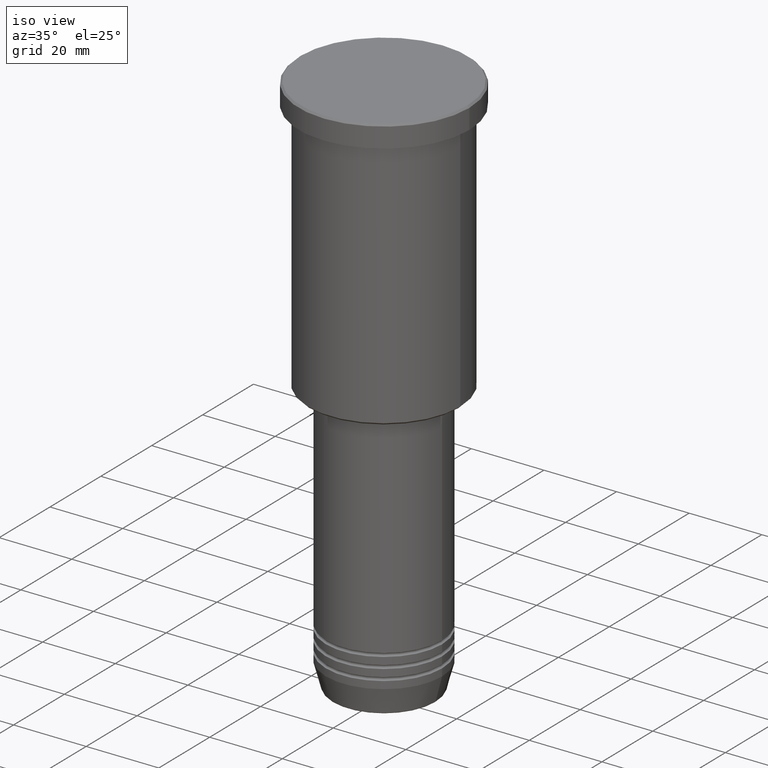
[diagram: clean part render]
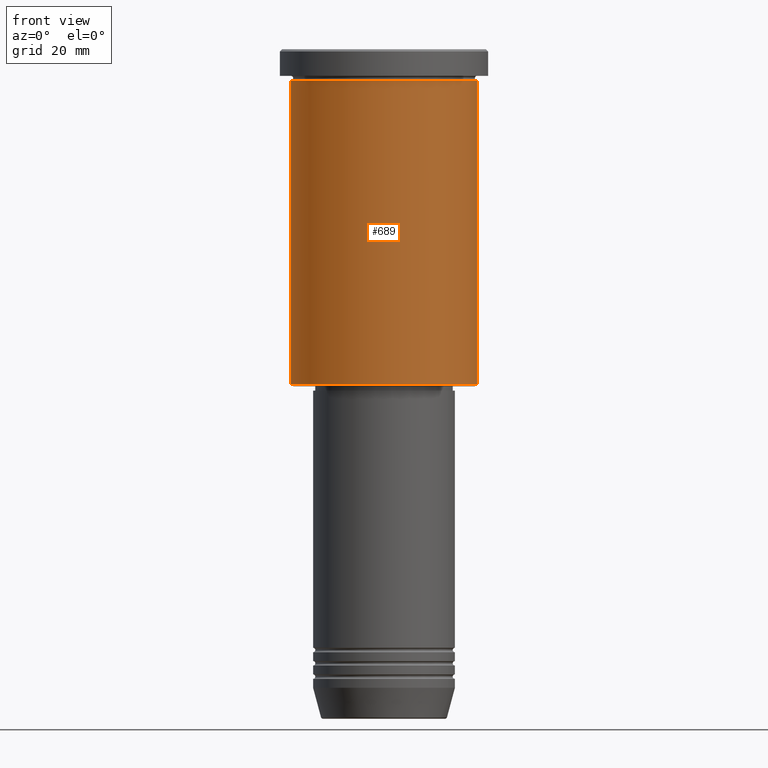
[diagram: tour spotlight — one face highlighted and labeled with its STEP entity id]
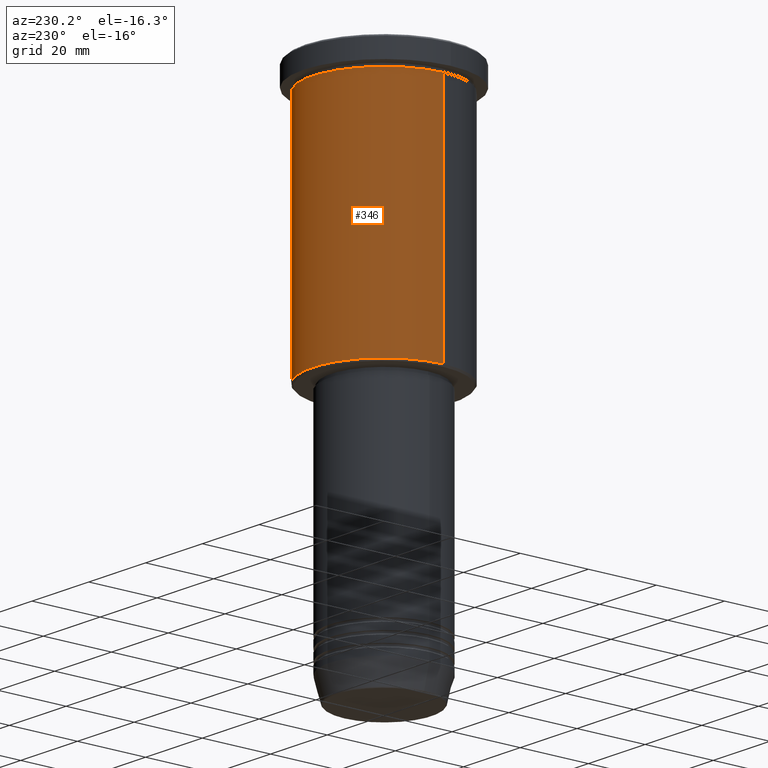
[diagram: tour spotlight — one face highlighted and labeled with its STEP entity id]
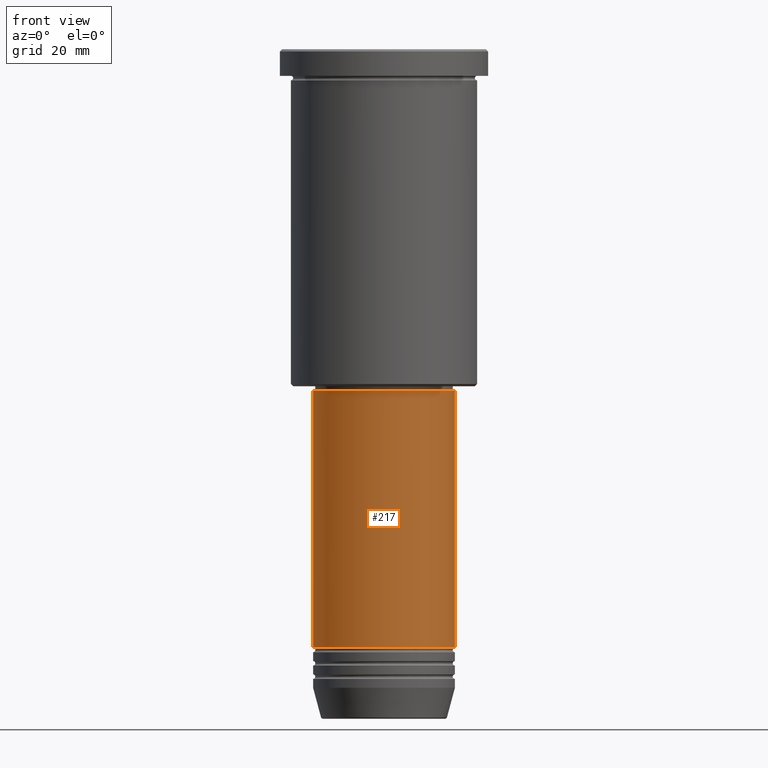
[diagram: tour spotlight — one face highlighted and labeled with its STEP entity id]
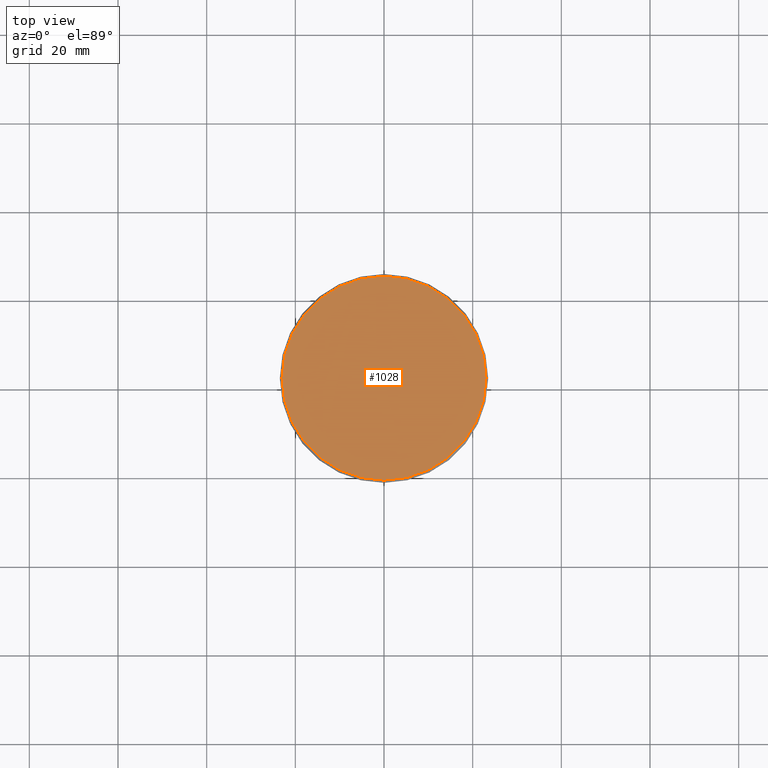
[diagram: tour spotlight — one face highlighted and labeled with its STEP entity id]
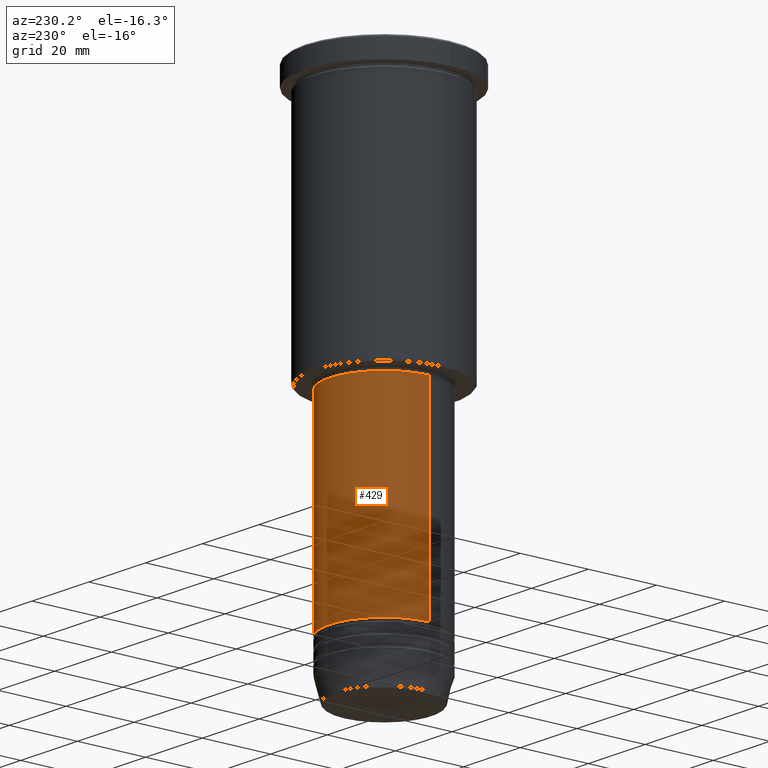
[diagram: tour spotlight — one face highlighted and labeled with its STEP entity id]
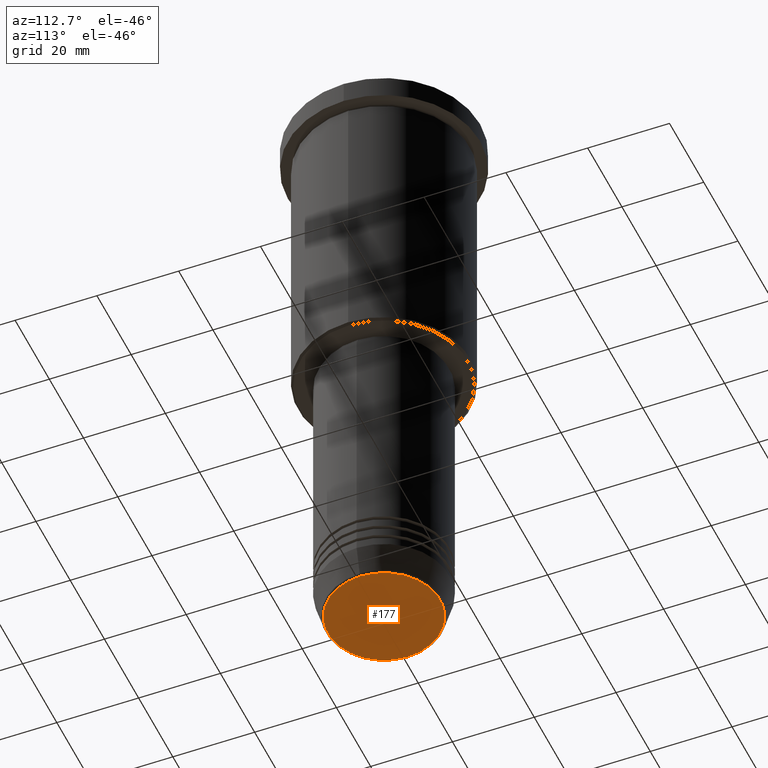
[diagram: tour spotlight — one face highlighted and labeled with its STEP entity id]
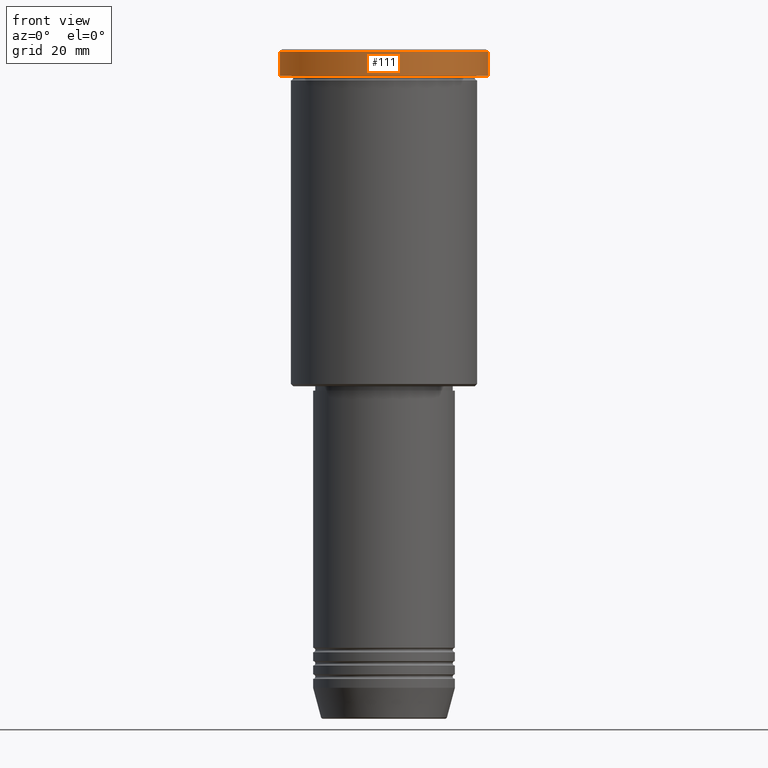
[diagram: tour spotlight — one face highlighted and labeled with its STEP entity id]
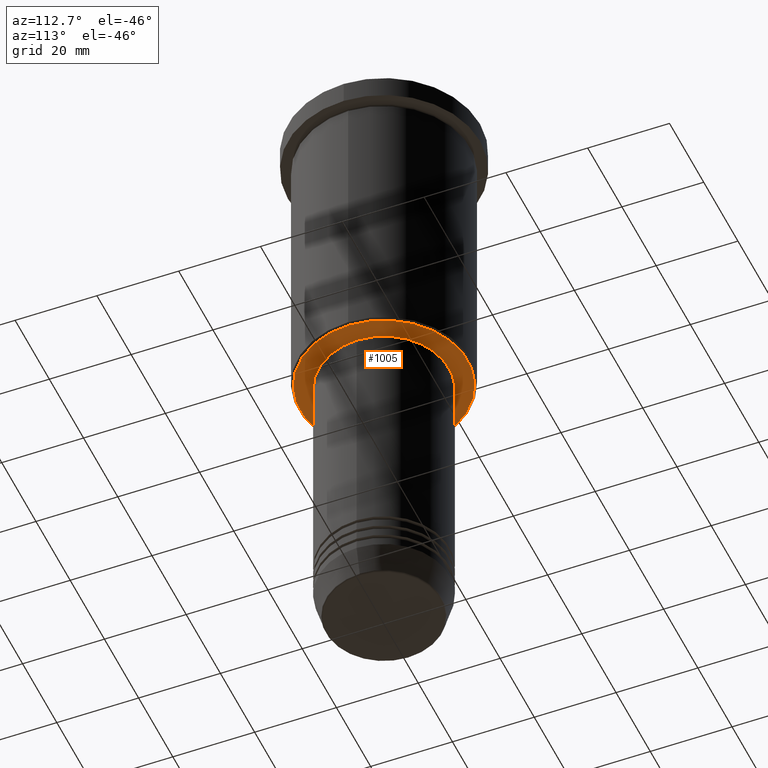
[diagram: tour spotlight — one face highlighted and labeled with its STEP entity id]
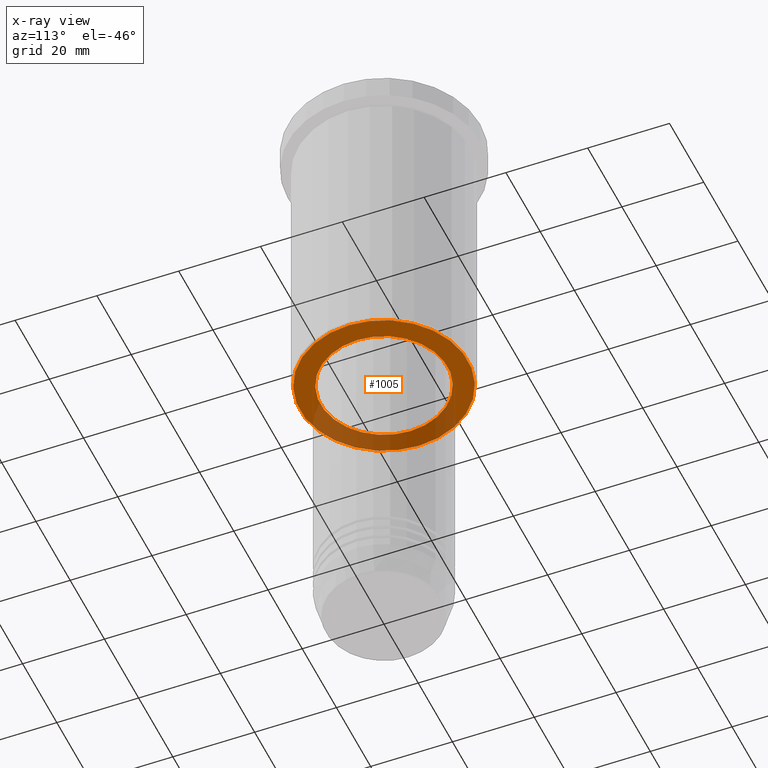
[diagram: x-ray of the same camera — body ghosted, this tour face saturated]
A machine part: a face-by-face anatomy tour. The part has 43 B-rep faces; the first image is the clean iso view, then the 8 largest visible faces are spotlighted one at a time (largest first), each with its STEP entity span.

Face 1 — front view, entity #689. In plain terms, the highlighted cylindrical surface (partial cylindrical patch) has radius 21 mm, axis along (-0, -0, 1).
Definition (entity closure, byte-faithful):
#3 = AXIS2_PLACEMENT_3D ( 'NONE', #139, #793, #599 ) ;
#29 = DIRECTION ( 'NONE',  ( -1.000000000000000000, 0.000000000000000000, 0.000000000000000000 ) ) ;
#139 = CARTESIAN_POINT ( 'NONE',  ( 0.000000000000000000, 0.000000000000000000, 0.000000000000000000 ) ) ;
#146 = FACE_OUTER_BOUND ( 'NONE', #410, .T. ) ;
#155 = AXIS2_PLACEMENT_3D ( 'NONE', #898, #538, #366 ) ;
#180 = LINE ( 'NONE', #651, #1159 ) ;
#182 = VERTEX_POINT ( 'NONE', #710 ) ;
#200 = ORIENTED_EDGE ( 'NONE', *, *, #778, .F. ) ;
#250 = CARTESIAN_POINT ( 'NONE',  ( -21.00000000000000000, 2.571758278209441661E-15, -75.50000000000000000 ) ) ;
#253 = EDGE_CURVE ( 'NONE', #182, #944, #180, .T. ) ;
#320 = VERTEX_POINT ( 'NONE', #250 ) ;
#362 = CARTESIAN_POINT ( 'NONE',  ( -21.00000000000000000, 2.571758278209441661E-15, -6.999999999999994671 ) ) ;
#366 = DIRECTION ( 'NONE',  ( 1.000000000000000000, 0.000000000000000000, 0.000000000000000000 ) ) ;
#367 = ORIENTED_EDGE ( 'NONE', *, *, #927, .T. ) ;
#398 = CARTESIAN_POINT ( 'NONE',  ( 0.000000000000000000, 0.000000000000000000, -75.50000000000000000 ) ) ;
#403 = CARTESIAN_POINT ( 'NONE',  ( 21.00000000000000000, 0.000000000000000000, -6.999999999999994671 ) ) ;
#410 = EDGE_LOOP ( 'NONE', ( #200, #367, #980, #819 ) ) ;
#538 = DIRECTION ( 'NONE',  ( -0.000000000000000000, -0.000000000000000000, 1.000000000000000000 ) ) ;
#554 = CARTESIAN_POINT ( 'NONE',  ( -21.00000000000000000, 2.571758278209441661E-15, 0.000000000000000000 ) ) ;
#592 = AXIS2_PLACEMENT_3D ( 'NONE', #398, #1121, #29 ) ;
#599 = DIRECTION ( 'NONE',  ( 1.000000000000000000, 0.000000000000000000, 0.000000000000000000 ) ) ;
#623 = LINE ( 'NONE', #554, #993 ) ;
#651 = CARTESIAN_POINT ( 'NONE',  ( 21.00000000000000000, 0.000000000000000000, 0.000000000000000000 ) ) ;
#689 = ADVANCED_FACE ( 'NONE', ( #146 ), #1042, .T. ) ;
#710 = CARTESIAN_POINT ( 'NONE',  ( 21.00000000000000000, 0.000000000000000000, -75.50000000000000000 ) ) ;
#749 = VERTEX_POINT ( 'NONE', #362 ) ;
#759 = EDGE_CURVE ( 'NONE', #749, #944, #916, .T. ) ;
#778 = EDGE_CURVE ( 'NONE', #320, #749, #623, .T. ) ;
#789 = CIRCLE ( 'NONE', #592, 21.00000000000000000 ) ;
#793 = DIRECTION ( 'NONE',  ( -0.000000000000000000, -0.000000000000000000, 1.000000000000000000 ) ) ;
#819 = ORIENTED_EDGE ( 'NONE', *, *, #759, .F. ) ;
#891 = DIRECTION ( 'NONE',  ( -0.000000000000000000, -0.000000000000000000, 1.000000000000000000 ) ) ;
#898 = CARTESIAN_POINT ( 'NONE',  ( 0.000000000000000000, 0.000000000000000000, -6.999999999999994671 ) ) ;
#916 = CIRCLE ( 'NONE', #155, 21.00000000000000000 ) ;
#927 = EDGE_CURVE ( 'NONE', #320, #182, #789, .T. ) ;
#944 = VERTEX_POINT ( 'NONE', #403 ) ;
#980 = ORIENTED_EDGE ( 'NONE', *, *, #253, .T. ) ;
#993 = VECTOR ( 'NONE', #891, 1000.000000000000000 ) ;
#1042 = CYLINDRICAL_SURFACE ( 'NONE', #3, 21.00000000000000000 ) ;
#1101 = DIRECTION ( 'NONE',  ( -0.000000000000000000, -0.000000000000000000, 1.000000000000000000 ) ) ;
#1121 = DIRECTION ( 'NONE',  ( -0.000000000000000000, -0.000000000000000000, 1.000000000000000000 ) ) ;
#1159 = VECTOR ( 'NONE', #1101, 1000.000000000000000 ) ;

Face 2 — auxiliary view, entity #346. In plain terms, the highlighted cylindrical surface (partial cylindrical patch) has radius 21 mm, axis along (-0, -0, 1).
Definition (entity closure, byte-faithful):
#4 = AXIS2_PLACEMENT_3D ( 'NONE', #381, #573, #285 ) ;
#71 = CYLINDRICAL_SURFACE ( 'NONE', #460, 21.00000000000000000 ) ;
#142 = AXIS2_PLACEMENT_3D ( 'NONE', #986, #627, #701 ) ;
#153 = FACE_OUTER_BOUND ( 'NONE', #931, .T. ) ;
#180 = LINE ( 'NONE', #651, #1159 ) ;
#182 = VERTEX_POINT ( 'NONE', #710 ) ;
#202 = ORIENTED_EDGE ( 'NONE', *, *, #778, .T. ) ;
#226 = ORIENTED_EDGE ( 'NONE', *, *, #253, .F. ) ;
#250 = CARTESIAN_POINT ( 'NONE',  ( -21.00000000000000000, 2.571758278209441661E-15, -75.50000000000000000 ) ) ;
#253 = EDGE_CURVE ( 'NONE', #182, #944, #180, .T. ) ;
#285 = DIRECTION ( 'NONE',  ( -1.000000000000000000, 0.000000000000000000, 0.000000000000000000 ) ) ;
#310 = EDGE_CURVE ( 'NONE', #944, #749, #999, .T. ) ;
#320 = VERTEX_POINT ( 'NONE', #250 ) ;
#346 = ADVANCED_FACE ( 'NONE', ( #153 ), #71, .T. ) ;
#349 = DIRECTION ( 'NONE',  ( 1.000000000000000000, 0.000000000000000000, 0.000000000000000000 ) ) ;
#362 = CARTESIAN_POINT ( 'NONE',  ( -21.00000000000000000, 2.571758278209441661E-15, -6.999999999999994671 ) ) ;
#381 = CARTESIAN_POINT ( 'NONE',  ( 0.000000000000000000, 0.000000000000000000, -75.50000000000000000 ) ) ;
#403 = CARTESIAN_POINT ( 'NONE',  ( 21.00000000000000000, 0.000000000000000000, -6.999999999999994671 ) ) ;
#460 = AXIS2_PLACEMENT_3D ( 'NONE', #1167, #709, #349 ) ;
#554 = CARTESIAN_POINT ( 'NONE',  ( -21.00000000000000000, 2.571758278209441661E-15, 0.000000000000000000 ) ) ;
#573 = DIRECTION ( 'NONE',  ( -0.000000000000000000, -0.000000000000000000, 1.000000000000000000 ) ) ;
#580 = ORIENTED_EDGE ( 'NONE', *, *, #310, .F. ) ;
#623 = LINE ( 'NONE', #554, #993 ) ;
#627 = DIRECTION ( 'NONE',  ( -0.000000000000000000, -0.000000000000000000, 1.000000000000000000 ) ) ;
#651 = CARTESIAN_POINT ( 'NONE',  ( 21.00000000000000000, 0.000000000000000000, 0.000000000000000000 ) ) ;
#701 = DIRECTION ( 'NONE',  ( 1.000000000000000000, 0.000000000000000000, 0.000000000000000000 ) ) ;
#709 = DIRECTION ( 'NONE',  ( -0.000000000000000000, -0.000000000000000000, 1.000000000000000000 ) ) ;
#710 = CARTESIAN_POINT ( 'NONE',  ( 21.00000000000000000, 0.000000000000000000, -75.50000000000000000 ) ) ;
#729 = CIRCLE ( 'NONE', #4, 21.00000000000000000 ) ;
#749 = VERTEX_POINT ( 'NONE', #362 ) ;
#778 = EDGE_CURVE ( 'NONE', #320, #749, #623, .T. ) ;
#783 = ORIENTED_EDGE ( 'NONE', *, *, #955, .T. ) ;
#891 = DIRECTION ( 'NONE',  ( -0.000000000000000000, -0.000000000000000000, 1.000000000000000000 ) ) ;
#931 = EDGE_LOOP ( 'NONE', ( #783, #202, #580, #226 ) ) ;
#944 = VERTEX_POINT ( 'NONE', #403 ) ;
#955 = EDGE_CURVE ( 'NONE', #182, #320, #729, .T. ) ;
#986 = CARTESIAN_POINT ( 'NONE',  ( 0.000000000000000000, 0.000000000000000000, -6.999999999999994671 ) ) ;
#993 = VECTOR ( 'NONE', #891, 1000.000000000000000 ) ;
#999 = CIRCLE ( 'NONE', #142, 21.00000000000000000 ) ;
#1101 = DIRECTION ( 'NONE',  ( -0.000000000000000000, -0.000000000000000000, 1.000000000000000000 ) ) ;
#1159 = VECTOR ( 'NONE', #1101, 1000.000000000000000 ) ;
#1167 = CARTESIAN_POINT ( 'NONE',  ( 0.000000000000000000, 0.000000000000000000, 0.000000000000000000 ) ) ;

Face 3 — front view, entity #217. In plain terms, the highlighted cylindrical surface (partial cylindrical patch) has radius 16 mm, axis along (-0, -0, 1).
Definition (entity closure, byte-faithful):
#44 = DIRECTION ( 'NONE',  ( -0.000000000000000000, -0.000000000000000000, 1.000000000000000000 ) ) ;
#45 = CIRCLE ( 'NONE', #868, 16.00000000000000000 ) ;
#84 = CARTESIAN_POINT ( 'NONE',  ( 16.00000000000000000, 0.000000000000000000, -76.99999999999998579 ) ) ;
#103 = CARTESIAN_POINT ( 'NONE',  ( 16.00000000000000000, 0.000000000000000000, -134.9999999999999432 ) ) ;
#151 = DIRECTION ( 'NONE',  ( -0.000000000000000000, -0.000000000000000000, 1.000000000000000000 ) ) ;
#217 = ADVANCED_FACE ( 'NONE', ( #1149 ), #402, .T. ) ;
#221 = CARTESIAN_POINT ( 'NONE',  ( 0.000000000000000000, 0.000000000000000000, -76.99999999999998579 ) ) ;
#245 = EDGE_CURVE ( 'NONE', #878, #748, #45, .T. ) ;
#277 = VERTEX_POINT ( 'NONE', #103 ) ;
#293 = VECTOR ( 'NONE', #151, 1000.000000000000000 ) ;
#354 = VECTOR ( 'NONE', #741, 1000.000000000000000 ) ;
#395 = AXIS2_PLACEMENT_3D ( 'NONE', #785, #1053, #424 ) ;
#402 = CYLINDRICAL_SURFACE ( 'NONE', #1139, 16.00000000000000000 ) ;
#411 = CARTESIAN_POINT ( 'NONE',  ( -16.00000000000000000, 1.959434878635765131E-15, 0.000000000000000000 ) ) ;
#412 = ORIENTED_EDGE ( 'NONE', *, *, #869, .T. ) ;
#420 = CARTESIAN_POINT ( 'NONE',  ( -16.00000000000000000, 1.959434878635765131E-15, -134.9999999999999432 ) ) ;
#424 = DIRECTION ( 'NONE',  ( 1.000000000000000000, 0.000000000000000000, 0.000000000000000000 ) ) ;
#485 = CARTESIAN_POINT ( 'NONE',  ( 16.00000000000000000, 0.000000000000000000, 0.000000000000000000 ) ) ;
#514 = CARTESIAN_POINT ( 'NONE',  ( 0.000000000000000000, 0.000000000000000000, 0.000000000000000000 ) ) ;
#657 = EDGE_CURVE ( 'NONE', #683, #878, #762, .T. ) ;
#672 = EDGE_LOOP ( 'NONE', ( #1043, #912, #412, #687 ) ) ;
#683 = VERTEX_POINT ( 'NONE', #420 ) ;
#687 = ORIENTED_EDGE ( 'NONE', *, *, #245, .F. ) ;
#741 = DIRECTION ( 'NONE',  ( -0.000000000000000000, -0.000000000000000000, 1.000000000000000000 ) ) ;
#748 = VERTEX_POINT ( 'NONE', #84 ) ;
#762 = LINE ( 'NONE', #411, #293 ) ;
#785 = CARTESIAN_POINT ( 'NONE',  ( 0.000000000000000000, 0.000000000000000000, -134.9999999999999432 ) ) ;
#830 = LINE ( 'NONE', #485, #354 ) ;
#835 = CARTESIAN_POINT ( 'NONE',  ( -16.00000000000000000, 1.959434878635765131E-15, -76.99999999999998579 ) ) ;
#837 = DIRECTION ( 'NONE',  ( -0.000000000000000000, -0.000000000000000000, 1.000000000000000000 ) ) ;
#868 = AXIS2_PLACEMENT_3D ( 'NONE', #221, #837, #1049 ) ;
#869 = EDGE_CURVE ( 'NONE', #277, #748, #830, .T. ) ;
#878 = VERTEX_POINT ( 'NONE', #835 ) ;
#912 = ORIENTED_EDGE ( 'NONE', *, *, #1082, .T. ) ;
#1043 = ORIENTED_EDGE ( 'NONE', *, *, #657, .F. ) ;
#1049 = DIRECTION ( 'NONE',  ( 1.000000000000000000, 0.000000000000000000, 0.000000000000000000 ) ) ;
#1053 = DIRECTION ( 'NONE',  ( -0.000000000000000000, -0.000000000000000000, 1.000000000000000000 ) ) ;
#1082 = EDGE_CURVE ( 'NONE', #683, #277, #1115, .T. ) ;
#1115 = CIRCLE ( 'NONE', #395, 16.00000000000000000 ) ;
#1139 = AXIS2_PLACEMENT_3D ( 'NONE', #514, #44, #1145 ) ;
#1145 = DIRECTION ( 'NONE',  ( 1.000000000000000000, 0.000000000000000000, 0.000000000000000000 ) ) ;
#1149 = FACE_OUTER_BOUND ( 'NONE', #672, .T. ) ;

Face 4 — top view, entity #1028. In plain terms, the highlighted planar face has unit normal (0, -0, 1).
Definition (entity closure, byte-faithful):
#40 = DIRECTION ( 'NONE',  ( 0.000000000000000000, -0.000000000000000000, 1.000000000000000000 ) ) ;
#69 = VERTEX_POINT ( 'NONE', #390 ) ;
#147 = EDGE_LOOP ( 'NONE', ( #342, #198 ) ) ;
#195 = CIRCLE ( 'NONE', #978, 22.99999999999999645 ) ;
#198 = ORIENTED_EDGE ( 'NONE', *, *, #237, .T. ) ;
#237 = EDGE_CURVE ( 'NONE', #812, #69, #195, .T. ) ;
#240 = CARTESIAN_POINT ( 'NONE',  ( 0.000000000000000000, 0.000000000000000000, 0.000000000000000000 ) ) ;
#309 = DIRECTION ( 'NONE',  ( -0.000000000000000000, -0.000000000000000000, 1.000000000000000000 ) ) ;
#318 = CARTESIAN_POINT ( 'NONE',  ( 0.000000000000000000, 0.000000000000000000, 0.000000000000000000 ) ) ;
#342 = ORIENTED_EDGE ( 'NONE', *, *, #688, .T. ) ;
#390 = CARTESIAN_POINT ( 'NONE',  ( -22.99999999999999645, 0.000000000000000000, 0.000000000000000000 ) ) ;
#457 = AXIS2_PLACEMENT_3D ( 'NONE', #318, #951, #678 ) ;
#591 = CIRCLE ( 'NONE', #457, 22.99999999999999645 ) ;
#669 = DIRECTION ( 'NONE',  ( 1.000000000000000000, 0.000000000000000000, 0.000000000000000000 ) ) ;
#675 = AXIS2_PLACEMENT_3D ( 'NONE', #240, #40, #945 ) ;
#678 = DIRECTION ( 'NONE',  ( 1.000000000000000000, 0.000000000000000000, 0.000000000000000000 ) ) ;
#688 = EDGE_CURVE ( 'NONE', #69, #812, #591, .T. ) ;
#692 = FACE_OUTER_BOUND ( 'NONE', #147, .T. ) ;
#812 = VERTEX_POINT ( 'NONE', #1073 ) ;
#940 = PLANE ( 'NONE',  #675 ) ;
#945 = DIRECTION ( 'NONE',  ( 1.000000000000000000, 0.000000000000000000, 0.000000000000000000 ) ) ;
#951 = DIRECTION ( 'NONE',  ( -0.000000000000000000, -0.000000000000000000, 1.000000000000000000 ) ) ;
#978 = AXIS2_PLACEMENT_3D ( 'NONE', #1124, #309, #669 ) ;
#1028 = ADVANCED_FACE ( 'NONE', ( #692 ), #940, .T. ) ;
#1073 = CARTESIAN_POINT ( 'NONE',  ( 22.99999999999999645, 2.847303808017596139E-15, 0.000000000000000000 ) ) ;
#1124 = CARTESIAN_POINT ( 'NONE',  ( 0.000000000000000000, 0.000000000000000000, 0.000000000000000000 ) ) ;

Face 5 — auxiliary view, entity #429. In plain terms, the highlighted cylindrical surface (partial cylindrical patch) has radius 16 mm, axis along (-0, -0, 1).
Definition (entity closure, byte-faithful):
#21 = DIRECTION ( 'NONE',  ( -0.000000000000000000, -0.000000000000000000, 1.000000000000000000 ) ) ;
#76 = CIRCLE ( 'NONE', #454, 16.00000000000000000 ) ;
#81 = DIRECTION ( 'NONE',  ( 1.000000000000000000, 0.000000000000000000, 0.000000000000000000 ) ) ;
#84 = CARTESIAN_POINT ( 'NONE',  ( 16.00000000000000000, 0.000000000000000000, -76.99999999999998579 ) ) ;
#103 = CARTESIAN_POINT ( 'NONE',  ( 16.00000000000000000, 0.000000000000000000, -134.9999999999999432 ) ) ;
#114 = ORIENTED_EDGE ( 'NONE', *, *, #869, .F. ) ;
#122 = CARTESIAN_POINT ( 'NONE',  ( 0.000000000000000000, 0.000000000000000000, 0.000000000000000000 ) ) ;
#151 = DIRECTION ( 'NONE',  ( -0.000000000000000000, -0.000000000000000000, 1.000000000000000000 ) ) ;
#231 = ORIENTED_EDGE ( 'NONE', *, *, #1177, .T. ) ;
#277 = VERTEX_POINT ( 'NONE', #103 ) ;
#293 = VECTOR ( 'NONE', #151, 1000.000000000000000 ) ;
#354 = VECTOR ( 'NONE', #741, 1000.000000000000000 ) ;
#392 = DIRECTION ( 'NONE',  ( 1.000000000000000000, 0.000000000000000000, 0.000000000000000000 ) ) ;
#411 = CARTESIAN_POINT ( 'NONE',  ( -16.00000000000000000, 1.959434878635765131E-15, 0.000000000000000000 ) ) ;
#416 = AXIS2_PLACEMENT_3D ( 'NONE', #467, #445, #81 ) ;
#420 = CARTESIAN_POINT ( 'NONE',  ( -16.00000000000000000, 1.959434878635765131E-15, -134.9999999999999432 ) ) ;
#429 = ADVANCED_FACE ( 'NONE', ( #1116 ), #664, .T. ) ;
#445 = DIRECTION ( 'NONE',  ( -0.000000000000000000, -0.000000000000000000, 1.000000000000000000 ) ) ;
#454 = AXIS2_PLACEMENT_3D ( 'NONE', #836, #21, #392 ) ;
#459 = EDGE_LOOP ( 'NONE', ( #231, #645, #685, #114 ) ) ;
#467 = CARTESIAN_POINT ( 'NONE',  ( 0.000000000000000000, 0.000000000000000000, -134.9999999999999432 ) ) ;
#485 = CARTESIAN_POINT ( 'NONE',  ( 16.00000000000000000, 0.000000000000000000, 0.000000000000000000 ) ) ;
#579 = EDGE_CURVE ( 'NONE', #748, #878, #76, .T. ) ;
#645 = ORIENTED_EDGE ( 'NONE', *, *, #657, .T. ) ;
#655 = DIRECTION ( 'NONE',  ( 1.000000000000000000, 0.000000000000000000, 0.000000000000000000 ) ) ;
#657 = EDGE_CURVE ( 'NONE', #683, #878, #762, .T. ) ;
#664 = CYLINDRICAL_SURFACE ( 'NONE', #889, 16.00000000000000000 ) ;
#683 = VERTEX_POINT ( 'NONE', #420 ) ;
#685 = ORIENTED_EDGE ( 'NONE', *, *, #579, .F. ) ;
#741 = DIRECTION ( 'NONE',  ( -0.000000000000000000, -0.000000000000000000, 1.000000000000000000 ) ) ;
#748 = VERTEX_POINT ( 'NONE', #84 ) ;
#762 = LINE ( 'NONE', #411, #293 ) ;
#830 = LINE ( 'NONE', #485, #354 ) ;
#835 = CARTESIAN_POINT ( 'NONE',  ( -16.00000000000000000, 1.959434878635765131E-15, -76.99999999999998579 ) ) ;
#836 = CARTESIAN_POINT ( 'NONE',  ( 0.000000000000000000, 0.000000000000000000, -76.99999999999998579 ) ) ;
#869 = EDGE_CURVE ( 'NONE', #277, #748, #830, .T. ) ;
#878 = VERTEX_POINT ( 'NONE', #835 ) ;
#889 = AXIS2_PLACEMENT_3D ( 'NONE', #122, #1182, #655 ) ;
#997 = CIRCLE ( 'NONE', #416, 16.00000000000000000 ) ;
#1116 = FACE_OUTER_BOUND ( 'NONE', #459, .T. ) ;
#1177 = EDGE_CURVE ( 'NONE', #277, #683, #997, .T. ) ;
#1182 = DIRECTION ( 'NONE',  ( -0.000000000000000000, -0.000000000000000000, 1.000000000000000000 ) ) ;

Face 6 — auxiliary view, entity #177. In plain terms, the highlighted planar face has unit normal (0, -0, 1).
Definition (entity closure, byte-faithful):
#25 = CARTESIAN_POINT ( 'NONE',  ( 13.74069215899266894, 0.000000000000000000, -150.9999999999999716 ) ) ;
#177 = ADVANCED_FACE ( 'NONE', ( #400 ), #656, .F. ) ;
#252 = AXIS2_PLACEMENT_3D ( 'NONE', #601, #1148, #882 ) ;
#400 = FACE_OUTER_BOUND ( 'NONE', #1111, .T. ) ;
#487 = CARTESIAN_POINT ( 'NONE',  ( 0.000000000000000000, 0.000000000000000000, -150.9999999999999716 ) ) ;
#561 = DIRECTION ( 'NONE',  ( 1.000000000000000000, 0.000000000000000000, 0.000000000000000000 ) ) ;
#587 = ORIENTED_EDGE ( 'NONE', *, *, #625, .T. ) ;
#595 = CARTESIAN_POINT ( 'NONE',  ( 0.000000000000000000, 0.000000000000000000, -150.9999999999999716 ) ) ;
#601 = CARTESIAN_POINT ( 'NONE',  ( 0.000000000000000000, 0.000000000000000000, -150.9999999999999716 ) ) ;
#625 = EDGE_CURVE ( 'NONE', #848, #922, #763, .T. ) ;
#641 = AXIS2_PLACEMENT_3D ( 'NONE', #595, #761, #1062 ) ;
#656 = PLANE ( 'NONE',  #810 ) ;
#686 = ORIENTED_EDGE ( 'NONE', *, *, #1008, .T. ) ;
#761 = DIRECTION ( 'NONE',  ( 0.000000000000000000, 0.000000000000000000, -1.000000000000000000 ) ) ;
#763 = CIRCLE ( 'NONE', #252, 13.74069215899266894 ) ;
#810 = AXIS2_PLACEMENT_3D ( 'NONE', #487, #1123, #561 ) ;
#848 = VERTEX_POINT ( 'NONE', #1080 ) ;
#882 = DIRECTION ( 'NONE',  ( 1.000000000000000000, 0.000000000000000000, 0.000000000000000000 ) ) ;
#922 = VERTEX_POINT ( 'NONE', #25 ) ;
#1008 = EDGE_CURVE ( 'NONE', #922, #848, #1014, .T. ) ;
#1014 = CIRCLE ( 'NONE', #641, 13.74069215899266894 ) ;
#1062 = DIRECTION ( 'NONE',  ( 1.000000000000000000, 0.000000000000000000, 0.000000000000000000 ) ) ;
#1080 = CARTESIAN_POINT ( 'NONE',  ( -13.74069215899266894, 1.712322416342417563E-15, -150.9999999999999716 ) ) ;
#1111 = EDGE_LOOP ( 'NONE', ( #686, #587 ) ) ;
#1123 = DIRECTION ( 'NONE',  ( 0.000000000000000000, -0.000000000000000000, 1.000000000000000000 ) ) ;
#1148 = DIRECTION ( 'NONE',  ( 0.000000000000000000, 0.000000000000000000, -1.000000000000000000 ) ) ;

Face 7 — front view, entity #111. In plain terms, the highlighted cylindrical surface (partial cylindrical patch) has radius 23.5 mm, axis along (-0, -0, 1).
Definition (entity closure, byte-faithful):
#41 = CIRCLE ( 'NONE', #866, 23.50000000000000000 ) ;
#55 = EDGE_CURVE ( 'NONE', #478, #742, #119, .T. ) ;
#65 = CARTESIAN_POINT ( 'NONE',  ( -23.50000000000000000, 2.877919977996280320E-15, 0.000000000000000000 ) ) ;
#78 = DIRECTION ( 'NONE',  ( -0.000000000000000000, -0.000000000000000000, 1.000000000000000000 ) ) ;
#111 = ADVANCED_FACE ( 'NONE', ( #314 ), #465, .T. ) ;
#119 = CIRCLE ( 'NONE', #1157, 23.50000000000000000 ) ;
#136 = CARTESIAN_POINT ( 'NONE',  ( -23.50000000000000000, 2.877919977996280320E-15, -5.999999999999994671 ) ) ;
#154 = CARTESIAN_POINT ( 'NONE',  ( -23.50000000000000000, 2.877919977996280320E-15, -0.5000000000000004441 ) ) ;
#187 = DIRECTION ( 'NONE',  ( -0.000000000000000000, -0.000000000000000000, 1.000000000000000000 ) ) ;
#281 = CARTESIAN_POINT ( 'NONE',  ( 23.50000000000000000, 0.000000000000000000, -5.999999999999994671 ) ) ;
#284 = CARTESIAN_POINT ( 'NONE',  ( 0.000000000000000000, 0.000000000000000000, -0.5000000000000004441 ) ) ;
#314 = FACE_OUTER_BOUND ( 'NONE', #469, .T. ) ;
#351 = EDGE_CURVE ( 'NONE', #1089, #742, #981, .T. ) ;
#368 = ORIENTED_EDGE ( 'NONE', *, *, #55, .T. ) ;
#374 = CARTESIAN_POINT ( 'NONE',  ( 0.000000000000000000, 0.000000000000000000, 0.000000000000000000 ) ) ;
#396 = AXIS2_PLACEMENT_3D ( 'NONE', #374, #1002, #482 ) ;
#415 = EDGE_CURVE ( 'NONE', #811, #478, #696, .T. ) ;
#440 = VECTOR ( 'NONE', #78, 1000.000000000000000 ) ;
#465 = CYLINDRICAL_SURFACE ( 'NONE', #396, 23.50000000000000000 ) ;
#469 = EDGE_LOOP ( 'NONE', ( #794, #1027, #775, #368 ) ) ;
#478 = VERTEX_POINT ( 'NONE', #725 ) ;
#482 = DIRECTION ( 'NONE',  ( 1.000000000000000000, 0.000000000000000000, 0.000000000000000000 ) ) ;
#644 = VECTOR ( 'NONE', #1178, 1000.000000000000000 ) ;
#649 = DIRECTION ( 'NONE',  ( 0.000000000000000000, 0.000000000000000000, -1.000000000000000000 ) ) ;
#666 = CARTESIAN_POINT ( 'NONE',  ( 0.000000000000000000, 0.000000000000000000, -5.999999999999994671 ) ) ;
#696 = LINE ( 'NONE', #910, #644 ) ;
#725 = CARTESIAN_POINT ( 'NONE',  ( 23.50000000000000000, 0.000000000000000000, -0.5000000000000004441 ) ) ;
#735 = DIRECTION ( 'NONE',  ( 1.000000000000000000, 0.000000000000000000, 0.000000000000000000 ) ) ;
#742 = VERTEX_POINT ( 'NONE', #154 ) ;
#775 = ORIENTED_EDGE ( 'NONE', *, *, #415, .T. ) ;
#794 = ORIENTED_EDGE ( 'NONE', *, *, #351, .F. ) ;
#811 = VERTEX_POINT ( 'NONE', #281 ) ;
#866 = AXIS2_PLACEMENT_3D ( 'NONE', #666, #187, #735 ) ;
#910 = CARTESIAN_POINT ( 'NONE',  ( 23.50000000000000000, 0.000000000000000000, 0.000000000000000000 ) ) ;
#915 = EDGE_CURVE ( 'NONE', #1089, #811, #41, .T. ) ;
#981 = LINE ( 'NONE', #65, #440 ) ;
#1002 = DIRECTION ( 'NONE',  ( -0.000000000000000000, -0.000000000000000000, 1.000000000000000000 ) ) ;
#1003 = DIRECTION ( 'NONE',  ( 1.000000000000000000, 0.000000000000000000, 0.000000000000000000 ) ) ;
#1027 = ORIENTED_EDGE ( 'NONE', *, *, #915, .T. ) ;
#1089 = VERTEX_POINT ( 'NONE', #136 ) ;
#1157 = AXIS2_PLACEMENT_3D ( 'NONE', #284, #649, #1003 ) ;
#1178 = DIRECTION ( 'NONE',  ( -0.000000000000000000, -0.000000000000000000, 1.000000000000000000 ) ) ;

Face 8 — auxiliary view, entity #1005. An x-ray twin of the same camera follows (body ghosted, this face saturated) — the face is partly hidden behind the body. In plain terms, the highlighted planar face has unit normal (0, 0, -1).
Definition (entity closure, byte-faithful):
#33 = EDGE_CURVE ( 'NONE', #585, #780, #608, .T. ) ;
#34 = FACE_BOUND ( 'NONE', #723, .T. ) ;
#50 = CARTESIAN_POINT ( 'NONE',  ( -20.50000000000000355, 2.541142108230758269E-15, -75.99999999999998579 ) ) ;
#92 = EDGE_CURVE ( 'NONE', #780, #585, #140, .T. ) ;
#99 = CARTESIAN_POINT ( 'NONE',  ( 0.000000000000000000, 0.000000000000000000, -75.99999999999998579 ) ) ;
#120 = AXIS2_PLACEMENT_3D ( 'NONE', #99, #635, #887 ) ;
#140 = CIRCLE ( 'NONE', #376, 15.50000000000000000 ) ;
#188 = VERTEX_POINT ( 'NONE', #879 ) ;
#197 = CIRCLE ( 'NONE', #870, 20.50000000000000355 ) ;
#207 = CARTESIAN_POINT ( 'NONE',  ( 0.000000000000000000, 0.000000000000000000, -75.99999999999998579 ) ) ;
#283 = ORIENTED_EDGE ( 'NONE', *, *, #453, .T. ) ;
#299 = ORIENTED_EDGE ( 'NONE', *, *, #510, .T. ) ;
#300 = DIRECTION ( 'NONE',  ( 0.000000000000000000, 0.000000000000000000, -1.000000000000000000 ) ) ;
#305 = ORIENTED_EDGE ( 'NONE', *, *, #92, .T. ) ;
#336 = CARTESIAN_POINT ( 'NONE',  ( 15.50000000000000000, 0.000000000000000000, -75.99999999999998579 ) ) ;
#371 = CARTESIAN_POINT ( 'NONE',  ( -15.50000000000000000, 1.898202538678397557E-15, -75.99999999999998579 ) ) ;
#376 = AXIS2_PLACEMENT_3D ( 'NONE', #491, #563, #387 ) ;
#387 = DIRECTION ( 'NONE',  ( 1.000000000000000000, 0.000000000000000000, 0.000000000000000000 ) ) ;
#436 = DIRECTION ( 'NONE',  ( 0.000000000000000000, 0.000000000000000000, -1.000000000000000000 ) ) ;
#453 = EDGE_CURVE ( 'NONE', #188, #629, #522, .T. ) ;
#491 = CARTESIAN_POINT ( 'NONE',  ( 0.000000000000000000, 0.000000000000000000, -75.99999999999998579 ) ) ;
#499 = AXIS2_PLACEMENT_3D ( 'NONE', #861, #436, #874 ) ;
#510 = EDGE_CURVE ( 'NONE', #629, #188, #197, .T. ) ;
#511 = PLANE ( 'NONE',  #499 ) ;
#522 = CIRCLE ( 'NONE', #708, 20.50000000000000355 ) ;
#563 = DIRECTION ( 'NONE',  ( -0.000000000000000000, -0.000000000000000000, 1.000000000000000000 ) ) ;
#585 = VERTEX_POINT ( 'NONE', #336 ) ;
#608 = CIRCLE ( 'NONE', #120, 15.50000000000000000 ) ;
#629 = VERTEX_POINT ( 'NONE', #50 ) ;
#635 = DIRECTION ( 'NONE',  ( -0.000000000000000000, -0.000000000000000000, 1.000000000000000000 ) ) ;
#636 = DIRECTION ( 'NONE',  ( 0.000000000000000000, 0.000000000000000000, -1.000000000000000000 ) ) ;
#680 = FACE_OUTER_BOUND ( 'NONE', #920, .T. ) ;
#708 = AXIS2_PLACEMENT_3D ( 'NONE', #207, #300, #756 ) ;
#723 = EDGE_LOOP ( 'NONE', ( #758, #305 ) ) ;
#756 = DIRECTION ( 'NONE',  ( -1.000000000000000000, 0.000000000000000000, 0.000000000000000000 ) ) ;
#758 = ORIENTED_EDGE ( 'NONE', *, *, #33, .T. ) ;
#780 = VERTEX_POINT ( 'NONE', #371 ) ;
#861 = CARTESIAN_POINT ( 'NONE',  ( 0.000000000000000000, 21.00000000000000000, -75.99999999999998579 ) ) ;
#870 = AXIS2_PLACEMENT_3D ( 'NONE', #1019, #636, #1031 ) ;
#874 = DIRECTION ( 'NONE',  ( -1.000000000000000000, 0.000000000000000000, -0.000000000000000000 ) ) ;
#879 = CARTESIAN_POINT ( 'NONE',  ( 20.50000000000000355, 0.000000000000000000, -75.99999999999998579 ) ) ;
#887 = DIRECTION ( 'NONE',  ( 1.000000000000000000, 0.000000000000000000, 0.000000000000000000 ) ) ;
#920 = EDGE_LOOP ( 'NONE', ( #283, #299 ) ) ;
#1005 = ADVANCED_FACE ( 'NONE', ( #680, #34 ), #511, .T. ) ;
#1019 = CARTESIAN_POINT ( 'NONE',  ( 0.000000000000000000, 0.000000000000000000, -75.99999999999998579 ) ) ;
#1031 = DIRECTION ( 'NONE',  ( -1.000000000000000000, 0.000000000000000000, 0.000000000000000000 ) ) ;